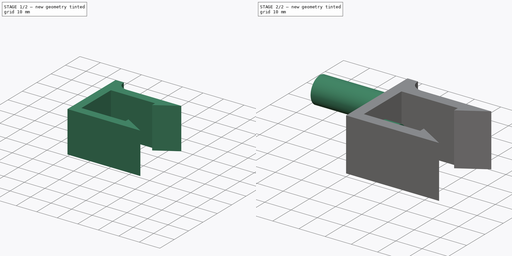
[diagram: build sequence overview — one tinted view per stage of 2, left to right]
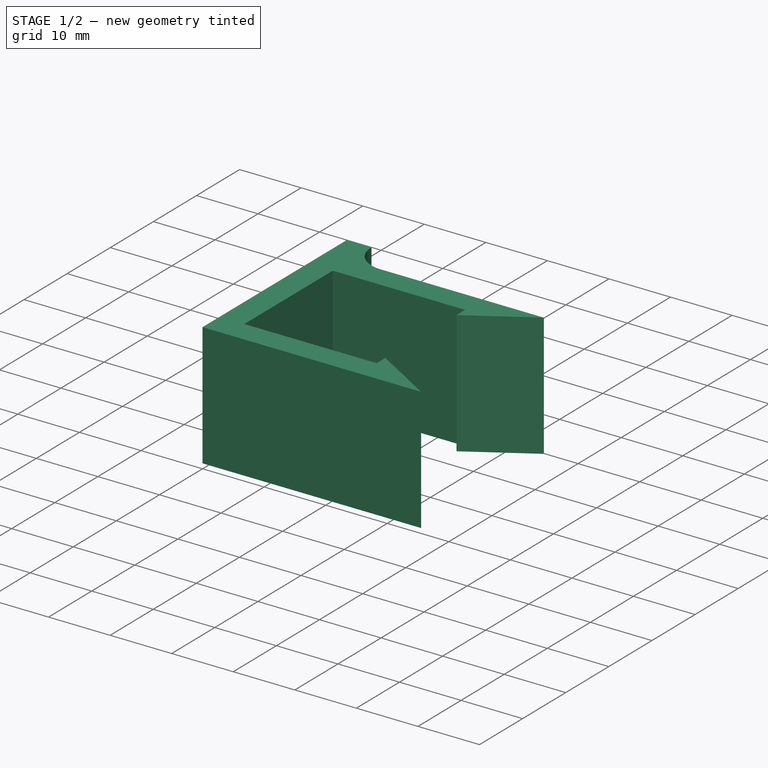
[diagram: stage 1 of 2 — iso view after this stage's code; geometry added in this stage tinted green]
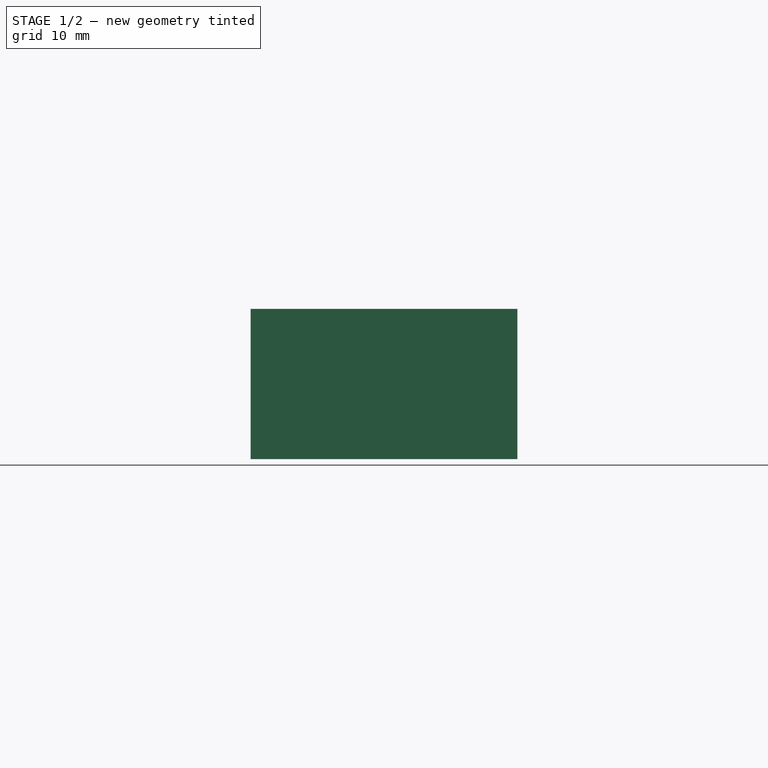
[diagram: stage 1 of 2 — front view after this stage's code; geometry added in this stage tinted green]
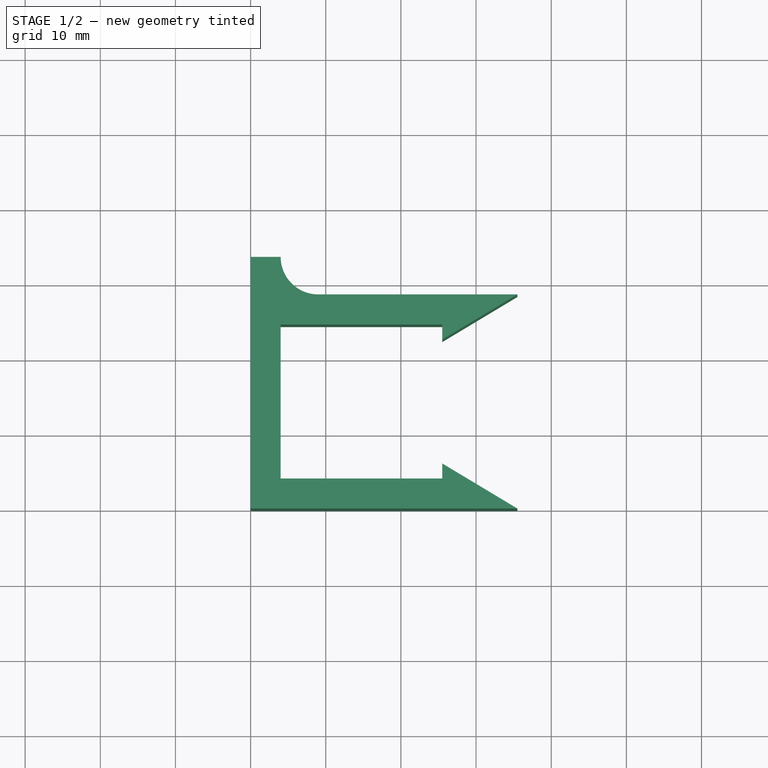
[diagram: stage 1 of 2 — top view after this stage's code; geometry added in this stage tinted green]
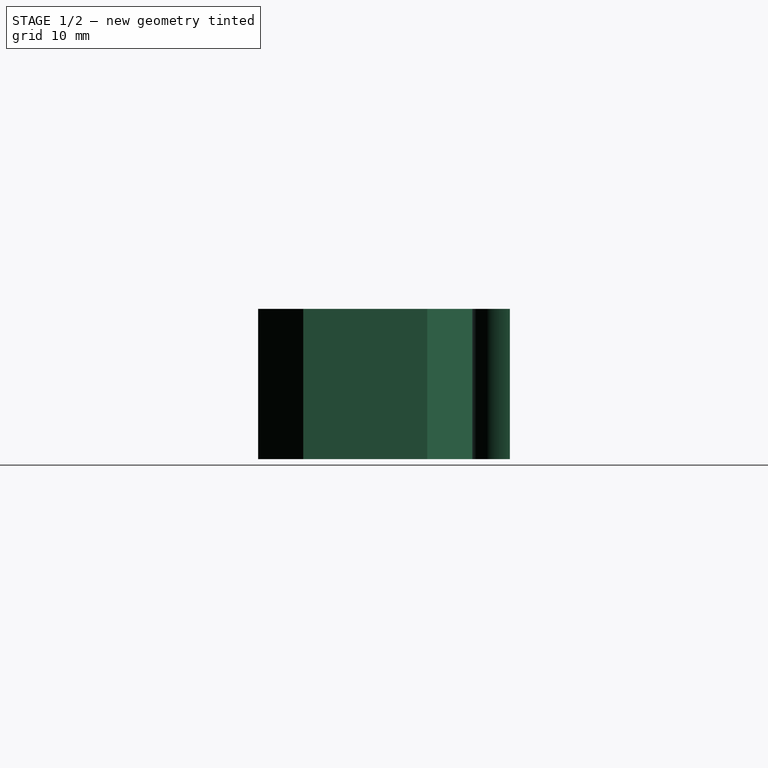
[diagram: stage 1 of 2 — right view after this stage's code; geometry added in this stage tinted green]
FCSTD DOCUMENT  (FreeCAD 1.0R39109 (Git))
Label: garbageHolder
License: All rights reserved
LicenseURL: http://en.wikipedia.org/wiki/All_rights_reserved
objects: Sketcher::SketchObject×4, PartDesign::Pad×4, App::VarSet×1, PartDesign::Body×1
note: 21 computed .brp shape members not serialized (recipe doc carries the construction recipe); baked Part::Feature solids carry a one-line shape summary decoded from their .brp

FEATURE [Sketcher::SketchObject] Sketch
  ArcFitTolerance = 1e-06
  AttachmentSupport = -> [XY_Plane]
  FullyConstrained = false
  MakeInternals = false
  MapMode = 5
  expr: Constraints[14] = VarSet.thickness
  expr: Constraints[15] = VarSet.thickness
  expr: Constraints[16] = VarSet.thickness
  expr: Constraints[17] = VarSet.hungerWidth
  expr: Constraints[18] = VarSet.hungerHeight
  expr: Constraints[23] = VarSet.thickness
  expr: Constraints[55] = VarSet.hungerOpeningReduce
  sketch-geometry (21):
    g0: LineSegment StartX=0 StartY=0 StartZ=0 EndX=35.5 EndY=0 EndZ=0
    g1: LineSegment StartX=35.5 StartY=28.5 StartZ=0 EndX=0 EndY=28.5 EndZ=0
    g2: LineSegment StartX=0 StartY=28.5 StartZ=0 EndX=0 EndY=0 EndZ=0
    g3: LineSegment StartX=4 StartY=4 StartZ=0 EndX=25.5 EndY=4 EndZ=0
    g4: LineSegment [constr] StartX=25.5 StartY=4 StartZ=0 EndX=25.5 EndY=24.5 EndZ=0
    g5: LineSegment StartX=25.5 StartY=24.5 StartZ=0 EndX=4 EndY=24.5 EndZ=0
    g6: LineSegment StartX=4 StartY=24.5 StartZ=0 EndX=4 EndY=4 EndZ=0
    g7: LineSegment [constr] StartX=29.5 StartY=24.9 StartZ=0 EndX=29.5 EndY=3.6 EndZ=0
    g8: LineSegment [constr] StartX=4 StartY=14.25 StartZ=0 EndX=25.5 EndY=14.25 EndZ=0
    g9: LineSegment StartX=25.5 StartY=22.5 StartZ=0 EndX=25.5 EndY=24.5 EndZ=0
    g10: LineSegment StartX=25.5 StartY=6 StartZ=0 EndX=25.5 EndY=4 EndZ=0
    g11: LineSegment StartX=35.5 StartY=28.5 StartZ=0 EndX=25.5 EndY=22.5 EndZ=0
    g12: LineSegment [constr] StartX=25.5 StartY=4 StartZ=0 EndX=25.5 EndY=0 EndZ=0
    g13: LineSegment [constr] StartX=25.5 StartY=24.5 StartZ=0 EndX=25.5 EndY=28.5 EndZ=0
    g14: LineSegment [constr] StartX=25.5 StartY=28.5 StartZ=0 EndX=25.5 EndY=25.3372 EndZ=0
    g15: LineSegment [constr] StartX=25.5 StartY=25.3372 StartZ=0 EndX=35.5 EndY=25.3372 EndZ=0
    g16: LineSegment [constr] StartX=35.5 StartY=25.3372 StartZ=0 EndX=35.5 EndY=28.5 EndZ=0
    g17: LineSegment [constr] StartX=25.5 StartY=0 StartZ=0 EndX=25.5 EndY=-1.75517 EndZ=0
    g18: LineSegment [constr] StartX=25.5 StartY=-1.75517 StartZ=0 EndX=35.5 EndY=-1.75517 EndZ=0
    g19: LineSegment [constr] StartX=35.5 StartY=-1.75517 StartZ=0 EndX=35.5 EndY=0 EndZ=0
    g20: LineSegment StartX=25.5 StartY=6 StartZ=0 EndX=35.5 EndY=0 EndZ=0
  constraints (56):
    c: Coincident(g1,g2)
    c: Coincident(g2,g0)
    c: Horizontal(g0)
    c: Horizontal(g1)
    c: Vertical(g2)
    c: Coincident(g0,g-1)
    c: Coincident(g3,g4)
    c: Coincident(g4,g5)
    c: Coincident(g5,g6)
    c: Coincident(g6,g3)
    c: Horizontal(g3)
    c: Horizontal(g5)
    c: Vertical(g4)
    c: Vertical(g6)
    c: DistanceX(g0,g3) = 4
    c: DistanceY(g0,g3) = 4
    c: DistanceY(g5,g1) = 4
    c: DistanceY(g6,g6) = 20.5
    c: DistanceX(g5,g5) = 21.5
    c: DistanceX(g4,g1) = 10
    c: Symmetric(g6,g6,g8)
    c: Symmetric(g4,g4,g8)
    c: Symmetric(g7,g7,g8)
    c: DistanceX(g3,g7) = 4
    c: PointOnObject(g9,g4)
    c: Coincident(g9,g4)
    c: PointOnObject(g10,g4)
    c: Coincident(g10,g3)
    c: Coincident(g11,g1)
    c: Coincident(g11,g9)
    c: PointOnObject(g7,g11)
    c: Coincident(g12,g3)
    c: PointOnObject(g12,g0)
    c: Vertical(g12)
    c: Coincident(g13,g4)
    c: PointOnObject(g13,g1)
    c: Vertical(g13)
    c: Coincident(g14,g13)
    c: Vertical(g14)
    c: Coincident(g15,g14)
    c: Horizontal(g15)
    c: Coincident(g16,g15)
    c: Coincident(g16,g1)
    c: Vertical(g1,g15)
    c: Coincident(g17,g12)
    c: Vertical(g17)
    c: Coincident(g18,g17)
    c: Horizontal(g18)
    c: Coincident(g19,g18)
    c: Coincident(g19,g0)
    c: Vertical(g19)
    c: Equal(g18,g15)
    c: Coincident(g20,g10)
    c: Coincident(g20,g0)
    c: PointOnObject(g7,g20)
    c: DistanceY(g9,g9) = 2
FEATURE [App::VarSet] VarSet
  extraPadLen = 5
  hungerHeight = 21.5
  hungerHoleR = 4
  hungerOpeningReduce = 2
  hungerWidth = 20.5
  mainPadLen = 20
  thickness = 4
FEATURE [PartDesign::Pad] Pad
  Direction = (0,0,1)
  Length = 20
  Length2 = 10
  Profile = -> Sketch
  ReferenceAxis = -> Sketch [N_Axis]
  Refine = true
  Suppressed = false
  Type = 0
  expr: Length = VarSet.mainPadLen
FEATURE [Sketcher::SketchObject] Sketch002
  ArcFitTolerance = 1e-06
  AttachmentSupport = -> [XY_Plane]
  FullyConstrained = true
  MakeInternals = false
  MapMode = 5
  expr: Constraints[10] = VarSet.thickness
  expr: Constraints[16] = VarSet.extraPadLen
  sketch-geometry (6):
    g0: LineSegment StartX=0 StartY=33.5 StartZ=0 EndX=0 EndY=28.5 EndZ=0
    g1: LineSegment StartX=0 StartY=28.5 StartZ=0 EndX=4 EndY=28.5 EndZ=0
    g2: LineSegment [constr] StartX=4 StartY=28.5 StartZ=0 EndX=4 EndY=33.5 EndZ=0
    g3: LineSegment StartX=4 StartY=33.5 StartZ=0 EndX=0 EndY=33.5 EndZ=0
    g4: ArcOfCircle CenterX=9 CenterY=33.5 CenterZ=0 NormalX=0 NormalY=0 NormalZ=1 AngleXU=0 Radius=5 StartAngle=3.14159 EndAngle=4.71239
    g5: LineSegment StartX=4 StartY=28.5 StartZ=0 EndX=9.00003 EndY=28.5 EndZ=0
  constraints (17):
    c: Coincident(g0,g1)
    c: Coincident(g1,g2)
    c: Coincident(g2,g3)
    c: Coincident(g3,g0)
    c: Vertical(g0)
    c: Vertical(g2)
    c: Horizontal(g1)
    c: Horizontal(g3)
    c: PointOnObject(g0,g-2)
    c: PointOnObject(g1,g-4)
    c: DistanceX(g3,g3) = 4
    c: Tangent(g4,g-4)
    c: Coincident(g5,g1)
    c: PointOnObject(g5,g-4)
    c: Tangent(g4,g2) = 1.5708
    c: Coincident(g4,g5)
    c: DistanceY(g0,g0) = 5
FEATURE [Sketcher::SketchObject] Sketch001
  ArcFitTolerance = 1e-06
  AttachmentSupport = -> [YZ_Plane]
  ExternalGeometry = -> [Sketch,Sketch002]
  FullyConstrained = false
  MakeInternals = false
  MapMode = 5
  Placement = pos=(0,0,0) rot=(0.57735,0.57735,0.57735;2.0944rad)
  expr: Constraints[1] = VarSet.mainPadLen / 2
  sketch-geometry (2):
    g0: Circle CenterX=28.5 CenterY=10 CenterZ=0 NormalX=0 NormalY=0 NormalZ=1 AngleXU=0 Radius=5
    g1: LineSegment [constr] StartX=-8.59345 StartY=10 StartZ=0 EndX=49.7107 EndY=10 EndZ=0
  constraints (5):
    c: Radius(g0) = 5
    c: DistanceY(g-1,g1) = 10
    c: PointOnObject(g0,g1)
    c: Horizontal(g1)
    c: DistanceX(g0,g-4) = 5
FEATURE [PartDesign::Pad] Pad003
  BaseFeature = -> Pad
  Direction = (0,0,1)
  Length = 20
  Length2 = 10
  Profile = -> Sketch002
  ReferenceAxis = -> Sketch002 [N_Axis]
  Refine = true
  Suppressed = false
  Type = 0
  expr: Length = VarSet.mainPadLen
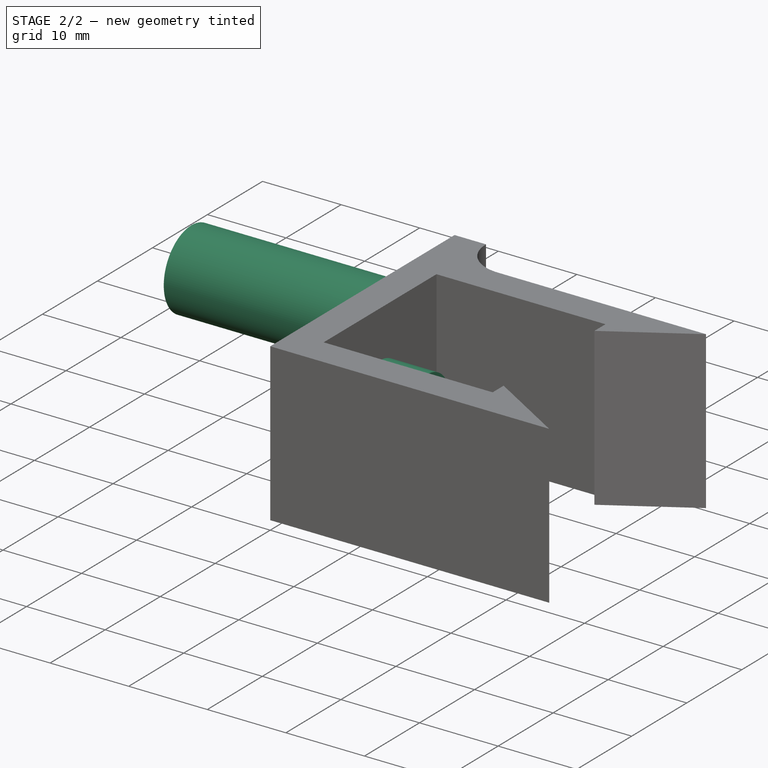
[diagram: stage 2 of 2 — iso view after this stage's code; geometry added in this stage tinted green]
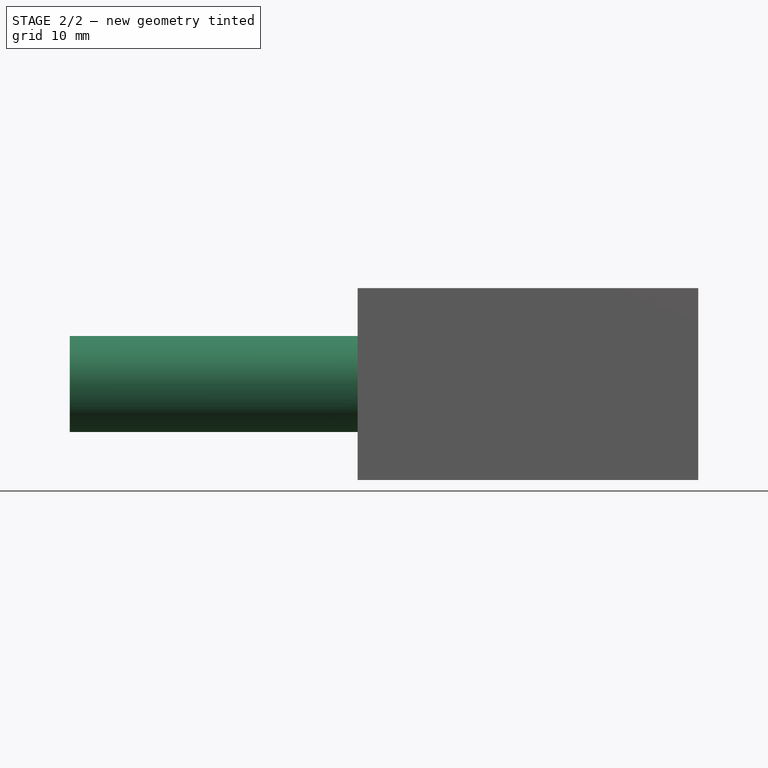
[diagram: stage 2 of 2 — front view after this stage's code; geometry added in this stage tinted green]
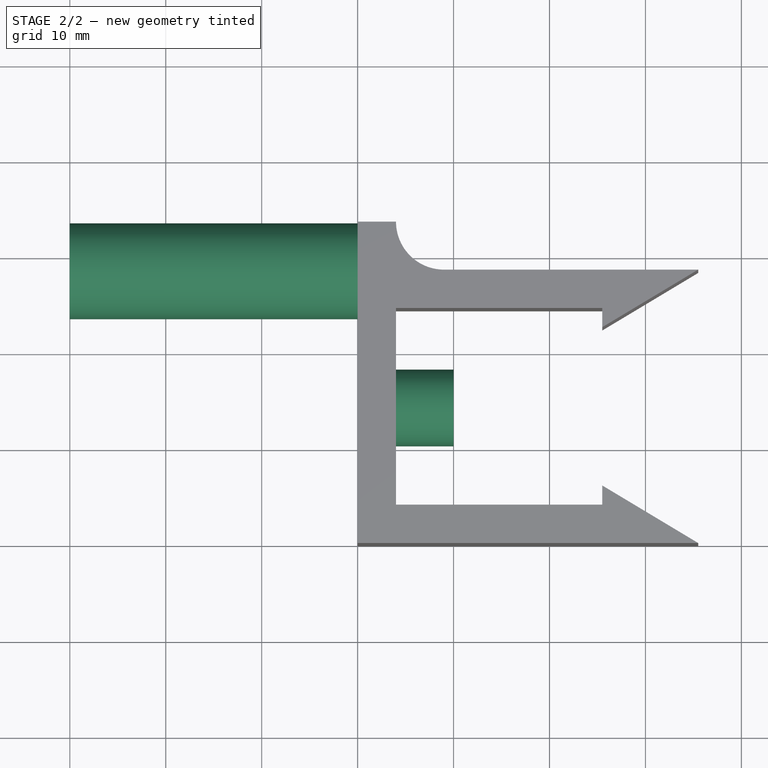
[diagram: stage 2 of 2 — top view after this stage's code; geometry added in this stage tinted green]
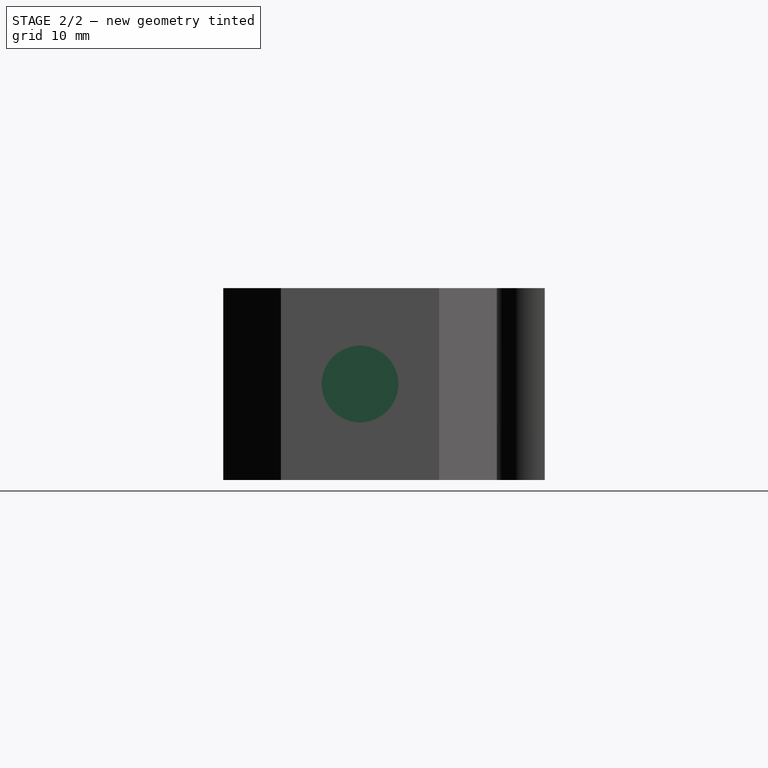
[diagram: stage 2 of 2 — right view after this stage's code; geometry added in this stage tinted green]
FEATURE [PartDesign::Pad] Pad004
  AlongSketchNormal = false
  BaseFeature = -> Pad003
  Direction = (1,0,0)
  Length = 30
  Length2 = 10
  Profile = -> Sketch001
  ReferenceAxis = -> Sketch001 [N_Axis]
  Refine = true
  Reversed = true
  Suppressed = false
  Type = 0
FEATURE [Sketcher::SketchObject] Sketch003
  ArcFitTolerance = 1e-06
  AttachmentSupport = -> [YZ_Plane]
  ExternalGeometry = -> [Pad003]
  FullyConstrained = true
  MakeInternals = false
  MapMode = 5
  Placement = pos=(0,0,0) rot=(0.57735,0.57735,0.57735;2.0944rad)
  expr: Constraints[3] = VarSet.hungerHoleR
  expr: Constraints[4] = VarSet.mainPadLen / 2
  expr: Constraints[5] = VarSet.thickness + VarSet.hungerWidth / 2
  sketch-geometry (2):
    g0: LineSegment [constr] StartX=24.5 StartY=20 StartZ=0 EndX=24.5 EndY=0 EndZ=0
    g1: Circle CenterX=14.25 CenterY=10 CenterZ=0 NormalX=0 NormalY=0 NormalZ=1 AngleXU=0 Radius=4
  constraints (6):
    c: Coincident(g0,g-3)
    c: PointOnObject(g0,g-1)
    c: Vertical(g0)
    c: Radius(g1) = 4
    c: DistanceY(g-1,g1) = 10
    c: DistanceX(g-1,g1) = 14.25
FEATURE [PartDesign::Pad] Pad005
  BaseFeature = -> Pad004
  Direction = (1,0,0)
  Length = 10
  Length2 = 10
  Profile = -> Sketch003
  ReferenceAxis = -> Sketch003 [N_Axis]
  Refine = true
  Suppressed = false
  Type = 0
FEATURE [PartDesign::Body] Body
  AllowCompound = false
  Group = -> [Sketch,VarSet,Pad,Sketch001,Sketch002,Pad003,Pad004,Sketch003,Pad005]
  Origin = -> Origin
  Tip = -> Pad005
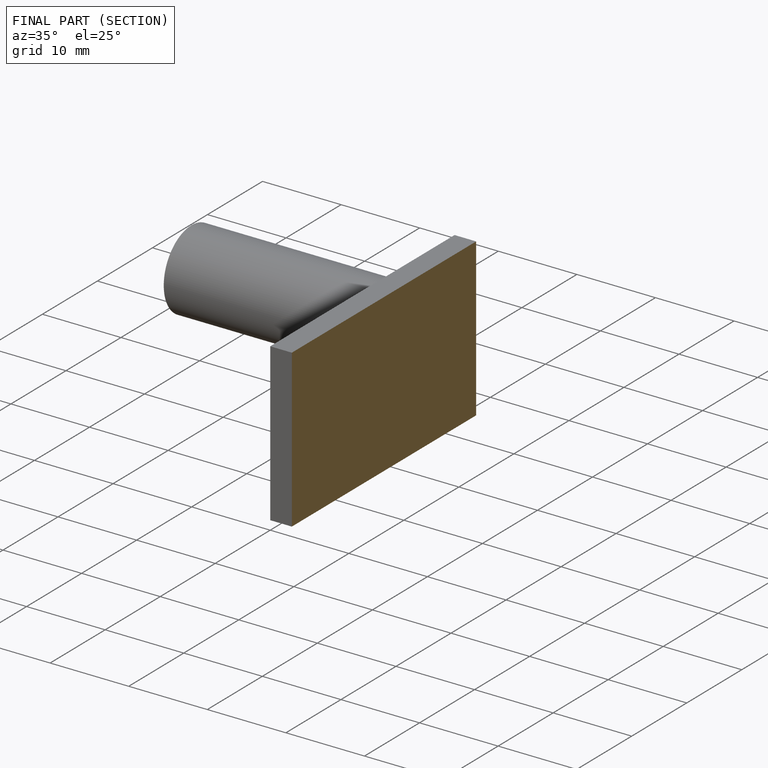
[diagram: finished part — half-section view (interior)]
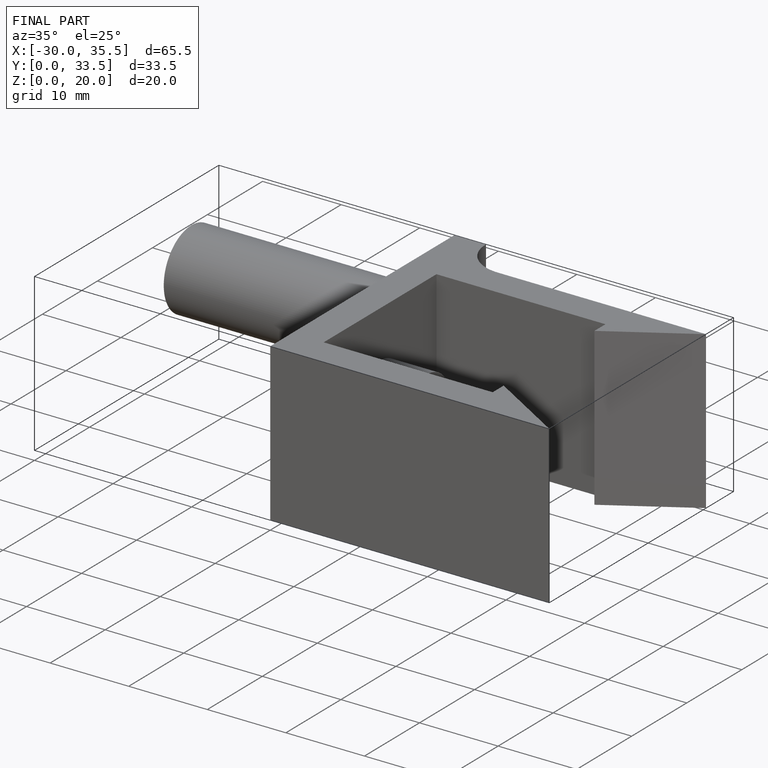
[diagram: finished part — iso view with bounding-box wireframe]
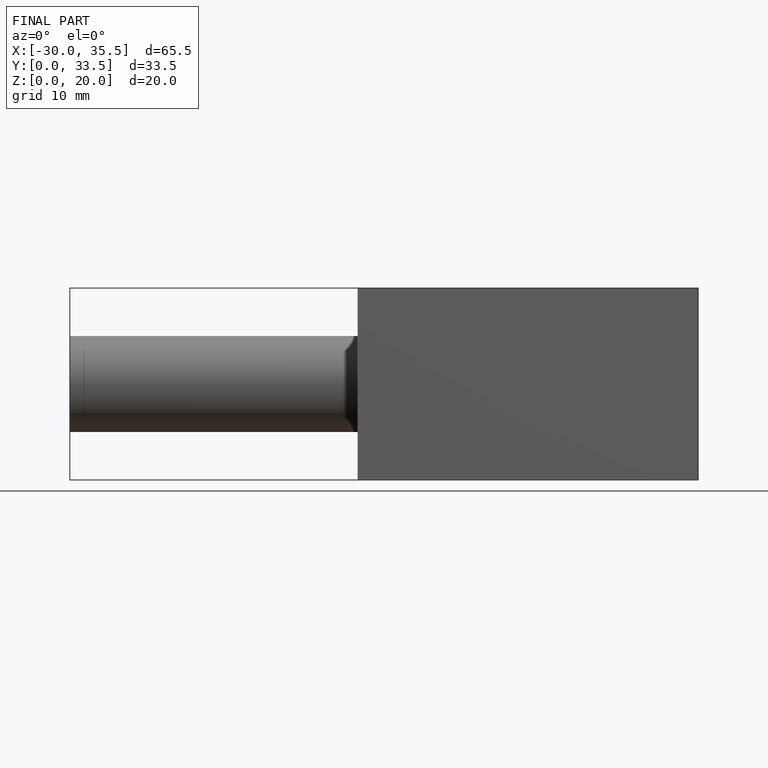
[diagram: finished part — front view with bounding-box wireframe]
